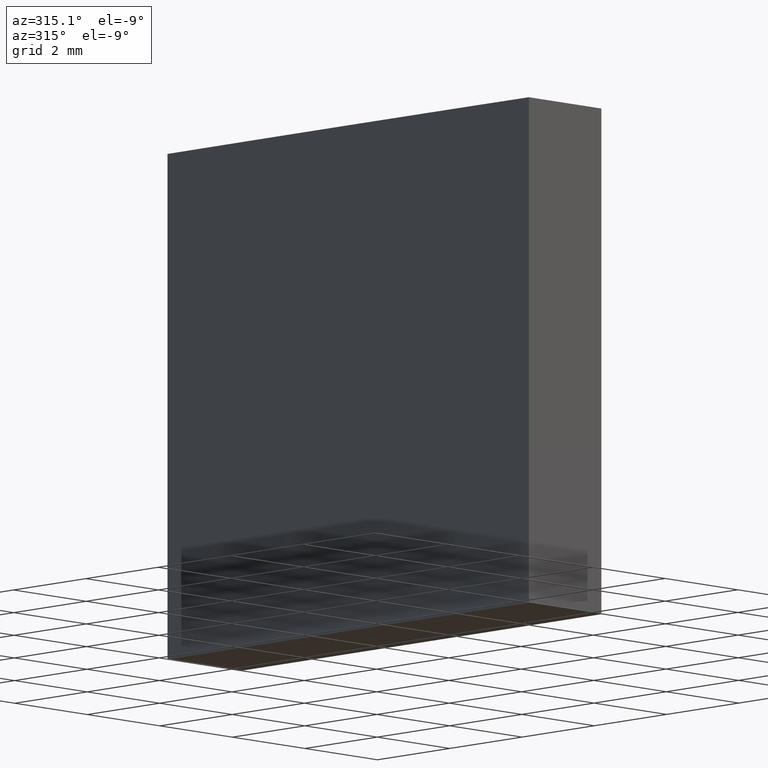
[diagram: clean part render]
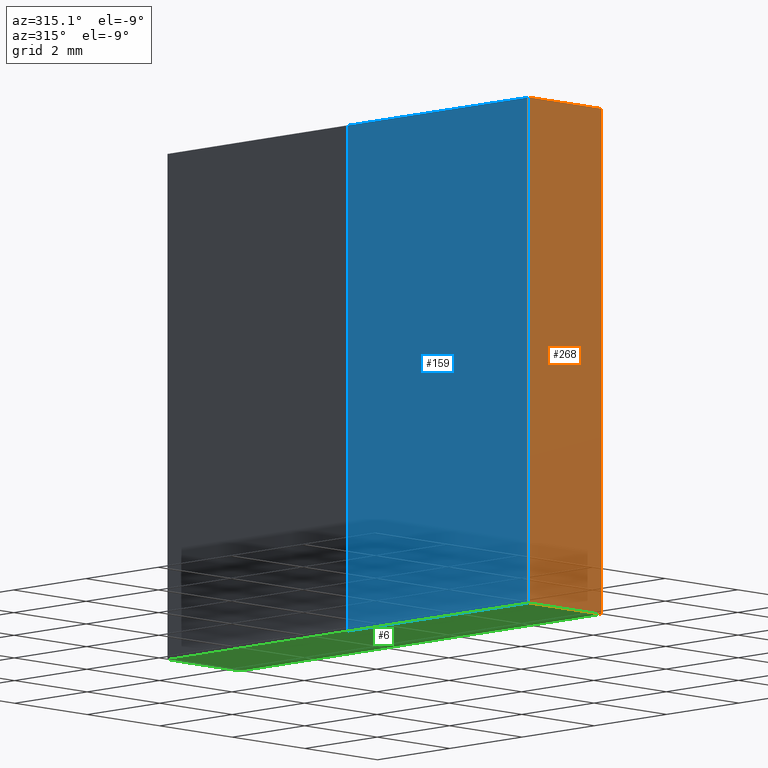
[diagram: same view with three faces highlighted in distinct colors, each labeled with its STEP entity id]
A machine part, auxiliary view with three faces highlighted in distinct colors.
Their STEP definitions:

[orange] entity #268 — the highlighted planar face has unit normal (-0, 1, 0).
#1 = EDGE_LOOP ( 'NONE', ( #62, #172, #50, #48 ) ) ;
#19 = PLANE ( 'NONE',  #195 ) ;
#35 = DIRECTION ( 'NONE',  ( 1.000000000000000000, 1.734723475976805517E-15, 0.000000000000000000 ) ) ;
#48 = ORIENTED_EDGE ( 'NONE', *, *, #86, .T. ) ;
#50 = ORIENTED_EDGE ( 'NONE', *, *, #211, .F. ) ;
#62 = ORIENTED_EDGE ( 'NONE', *, *, #136, .T. ) ;
#63 = VECTOR ( 'NONE', #84, 1000.000000000000000 ) ;
#68 = CARTESIAN_POINT ( 'NONE',  ( -516.7758121274639507, -5.000000000000004441, 0.000000000000000000 ) ) ;
#72 = DIRECTION ( 'NONE',  ( 1.000000000000000000, 1.734723475976805517E-15, 0.000000000000000000 ) ) ;
#82 = DIRECTION ( 'NONE',  ( -1.000000000000000000, -1.734723475976805517E-15, 0.000000000000000000 ) ) ;
#84 = DIRECTION ( 'NONE',  ( -0.000000000000000000, -0.000000000000000000, -1.000000000000000000 ) ) ;
#86 = EDGE_CURVE ( 'NONE', #164, #121, #240, .T. ) ;
#121 = VERTEX_POINT ( 'NONE', #68 ) ;
#127 = VECTOR ( 'NONE', #35, 1000.000000000000000 ) ;
#128 = CARTESIAN_POINT ( 'NONE',  ( -516.7758121274639507, -5.000000000000004441, 10.00000000000000000 ) ) ;
#129 = CARTESIAN_POINT ( 'NONE',  ( -514.7758121274639507, -5.000000000000000888, 10.00000000000000000 ) ) ;
#136 = EDGE_CURVE ( 'NONE', #121, #235, #263, .T. ) ;
#162 = VECTOR ( 'NONE', #72, 1000.000000000000000 ) ;
#164 = VERTEX_POINT ( 'NONE', #169 ) ;
#167 = FACE_OUTER_BOUND ( 'NONE', #1, .T. ) ;
#169 = CARTESIAN_POINT ( 'NONE',  ( -516.7758121274639507, -5.000000000000004441, 10.00000000000000000 ) ) ;
#172 = ORIENTED_EDGE ( 'NONE', *, *, #232, .F. ) ;
#173 = VECTOR ( 'NONE', #218, 1000.000000000000000 ) ;
#183 = LINE ( 'NONE', #272, #127 ) ;
#190 = VERTEX_POINT ( 'NONE', #229 ) ;
#195 = AXIS2_PLACEMENT_3D ( 'NONE', #128, #226, #82 ) ;
#202 = CARTESIAN_POINT ( 'NONE',  ( -516.7758121274639507, -5.000000000000004441, 10.00000000000000000 ) ) ;
#207 = CARTESIAN_POINT ( 'NONE',  ( -514.7758121274639507, -5.000000000000000888, 0.000000000000000000 ) ) ;
#211 = EDGE_CURVE ( 'NONE', #164, #190, #183, .T. ) ;
#218 = DIRECTION ( 'NONE',  ( -0.000000000000000000, -0.000000000000000000, -1.000000000000000000 ) ) ;
#225 = LINE ( 'NONE', #129, #63 ) ;
#226 = DIRECTION ( 'NONE',  ( -1.734723475976805517E-15, 1.000000000000000000, 0.000000000000000000 ) ) ;
#229 = CARTESIAN_POINT ( 'NONE',  ( -514.7758121274639507, -5.000000000000000888, 10.00000000000000000 ) ) ;
#232 = EDGE_CURVE ( 'NONE', #190, #235, #225, .T. ) ;
#235 = VERTEX_POINT ( 'NONE', #207 ) ;
#240 = LINE ( 'NONE', #202, #173 ) ;
#259 = CARTESIAN_POINT ( 'NONE',  ( -516.7758121274639507, -5.000000000000004441, 0.000000000000000000 ) ) ;
#263 = LINE ( 'NONE', #259, #162 ) ;
#268 = ADVANCED_FACE ( 'NONE', ( #167 ), #19, .F. ) ;
#272 = CARTESIAN_POINT ( 'NONE',  ( -516.7758121274639507, -5.000000000000004441, 10.00000000000000000 ) ) ;

[blue] entity #159 — the highlighted cylindrical surface (partial cylindrical patch) has radius 516.8 mm, axis along (-0, -0, -1).
#12 = AXIS2_PLACEMENT_3D ( 'NONE', #247, #83, #206 ) ;
#36 = EDGE_CURVE ( 'NONE', #66, #164, #144, .T. ) ;
#39 = DIRECTION ( 'NONE',  ( 0.000000000000000000, 0.000000000000000000, 1.000000000000000000 ) ) ;
#45 = VERTEX_POINT ( 'NONE', #242 ) ;
#58 = EDGE_CURVE ( 'NONE', #66, #45, #146, .T. ) ;
#59 = DIRECTION ( 'NONE',  ( 1.000000000000000000, 0.000000000000000000, 0.000000000000000000 ) ) ;
#61 = EDGE_LOOP ( 'NONE', ( #74, #157, #222, #241 ) ) ;
#66 = VERTEX_POINT ( 'NONE', #122 ) ;
#68 = CARTESIAN_POINT ( 'NONE',  ( -516.7758121274639507, -5.000000000000004441, 0.000000000000000000 ) ) ;
#74 = ORIENTED_EDGE ( 'NONE', *, *, #36, .F. ) ;
#76 = CIRCLE ( 'NONE', #192, 516.7999999999999545 ) ;
#83 = DIRECTION ( 'NONE',  ( -0.000000000000000000, -0.000000000000000000, -1.000000000000000000 ) ) ;
#86 = EDGE_CURVE ( 'NONE', #164, #121, #240, .T. ) ;
#96 = DIRECTION ( 'NONE',  ( 0.000000000000000000, 0.000000000000000000, 1.000000000000000000 ) ) ;
#100 = CARTESIAN_POINT ( 'NONE',  ( 0.000000000000000000, 0.000000000000000000, 10.00000000000000000 ) ) ;
#121 = VERTEX_POINT ( 'NONE', #68 ) ;
#122 = CARTESIAN_POINT ( 'NONE',  ( -516.7999999999999545, 0.000000000000000000, 10.00000000000000000 ) ) ;
#144 = CIRCLE ( 'NONE', #270, 516.7999999999999545 ) ;
#146 = LINE ( 'NONE', #199, #186 ) ;
#150 = CYLINDRICAL_SURFACE ( 'NONE', #12, 516.7999999999999545 ) ;
#157 = ORIENTED_EDGE ( 'NONE', *, *, #58, .T. ) ;
#159 = ADVANCED_FACE ( 'NONE', ( #267 ), #150, .T. ) ;
#164 = VERTEX_POINT ( 'NONE', #169 ) ;
#169 = CARTESIAN_POINT ( 'NONE',  ( -516.7758121274639507, -5.000000000000004441, 10.00000000000000000 ) ) ;
#173 = VECTOR ( 'NONE', #218, 1000.000000000000000 ) ;
#179 = DIRECTION ( 'NONE',  ( -0.000000000000000000, -0.000000000000000000, -1.000000000000000000 ) ) ;
#185 = CARTESIAN_POINT ( 'NONE',  ( 0.000000000000000000, 0.000000000000000000, 0.000000000000000000 ) ) ;
#186 = VECTOR ( 'NONE', #179, 1000.000000000000000 ) ;
#192 = AXIS2_PLACEMENT_3D ( 'NONE', #185, #39, #59 ) ;
#199 = CARTESIAN_POINT ( 'NONE',  ( -516.7999999999999545, 0.000000000000000000, 10.00000000000000000 ) ) ;
#202 = CARTESIAN_POINT ( 'NONE',  ( -516.7758121274639507, -5.000000000000004441, 10.00000000000000000 ) ) ;
#203 = DIRECTION ( 'NONE',  ( 1.000000000000000000, 0.000000000000000000, 0.000000000000000000 ) ) ;
#206 = DIRECTION ( 'NONE',  ( -1.000000000000000000, 0.000000000000000000, 0.000000000000000000 ) ) ;
#218 = DIRECTION ( 'NONE',  ( -0.000000000000000000, -0.000000000000000000, -1.000000000000000000 ) ) ;
#222 = ORIENTED_EDGE ( 'NONE', *, *, #227, .T. ) ;
#227 = EDGE_CURVE ( 'NONE', #45, #121, #76, .T. ) ;
#240 = LINE ( 'NONE', #202, #173 ) ;
#241 = ORIENTED_EDGE ( 'NONE', *, *, #86, .F. ) ;
#242 = CARTESIAN_POINT ( 'NONE',  ( -516.7999999999999545, 0.000000000000000000, 0.000000000000000000 ) ) ;
#247 = CARTESIAN_POINT ( 'NONE',  ( 0.000000000000000000, 0.000000000000000000, 10.00000000000000000 ) ) ;
#267 = FACE_OUTER_BOUND ( 'NONE', #61, .T. ) ;
#270 = AXIS2_PLACEMENT_3D ( 'NONE', #100, #96, #203 ) ;

[green] entity #6 — the highlighted planar face has unit normal (0, 0, 1).
#3 = ORIENTED_EDGE ( 'NONE', *, *, #152, .F. ) ;
#6 = ADVANCED_FACE ( 'NONE', ( #46 ), #75, .F. ) ;
#7 = LINE ( 'NONE', #98, #264 ) ;
#18 = CARTESIAN_POINT ( 'NONE',  ( -514.7758121274639507, 5.000000000000000888, 0.000000000000000000 ) ) ;
#27 = DIRECTION ( 'NONE',  ( 0.000000000000000000, 0.000000000000000000, 1.000000000000000000 ) ) ;
#38 = AXIS2_PLACEMENT_3D ( 'NONE', #237, #165, #224 ) ;
#39 = DIRECTION ( 'NONE',  ( 0.000000000000000000, 0.000000000000000000, 1.000000000000000000 ) ) ;
#45 = VERTEX_POINT ( 'NONE', #242 ) ;
#46 = FACE_OUTER_BOUND ( 'NONE', #88, .T. ) ;
#52 = DIRECTION ( 'NONE',  ( -1.000000000000000000, 1.734723475976805517E-15, -0.000000000000000000 ) ) ;
#54 = EDGE_CURVE ( 'NONE', #115, #137, #7, .T. ) ;
#59 = DIRECTION ( 'NONE',  ( 1.000000000000000000, 0.000000000000000000, 0.000000000000000000 ) ) ;
#68 = CARTESIAN_POINT ( 'NONE',  ( -516.7758121274639507, -5.000000000000004441, 0.000000000000000000 ) ) ;
#72 = DIRECTION ( 'NONE',  ( 1.000000000000000000, 1.734723475976805517E-15, 0.000000000000000000 ) ) ;
#73 = ORIENTED_EDGE ( 'NONE', *, *, #54, .F. ) ;
#75 = PLANE ( 'NONE',  #168 ) ;
#76 = CIRCLE ( 'NONE', #192, 516.7999999999999545 ) ;
#88 = EDGE_LOOP ( 'NONE', ( #3, #73, #110, #143, #274 ) ) ;
#97 = CIRCLE ( 'NONE', #38, 516.7999999999999545 ) ;
#98 = CARTESIAN_POINT ( 'NONE',  ( -516.7758121274639507, 5.000000000000004441, 0.000000000000000000 ) ) ;
#110 = ORIENTED_EDGE ( 'NONE', *, *, #155, .F. ) ;
#115 = VERTEX_POINT ( 'NONE', #120 ) ;
#117 = CARTESIAN_POINT ( 'NONE',  ( 0.000000000000000000, 0.000000000000000000, 0.000000000000000000 ) ) ;
#120 = CARTESIAN_POINT ( 'NONE',  ( -514.7758121274639507, 5.000000000000000888, 0.000000000000000000 ) ) ;
#121 = VERTEX_POINT ( 'NONE', #68 ) ;
#131 = VECTOR ( 'NONE', #147, 1000.000000000000000 ) ;
#136 = EDGE_CURVE ( 'NONE', #121, #235, #263, .T. ) ;
#137 = VERTEX_POINT ( 'NONE', #261 ) ;
#143 = ORIENTED_EDGE ( 'NONE', *, *, #136, .F. ) ;
#147 = DIRECTION ( 'NONE',  ( -0.000000000000000000, 1.000000000000000000, -0.000000000000000000 ) ) ;
#152 = EDGE_CURVE ( 'NONE', #137, #45, #97, .T. ) ;
#155 = EDGE_CURVE ( 'NONE', #235, #115, #243, .T. ) ;
#162 = VECTOR ( 'NONE', #72, 1000.000000000000000 ) ;
#165 = DIRECTION ( 'NONE',  ( 0.000000000000000000, 0.000000000000000000, 1.000000000000000000 ) ) ;
#168 = AXIS2_PLACEMENT_3D ( 'NONE', #117, #27, #201 ) ;
#185 = CARTESIAN_POINT ( 'NONE',  ( 0.000000000000000000, 0.000000000000000000, 0.000000000000000000 ) ) ;
#192 = AXIS2_PLACEMENT_3D ( 'NONE', #185, #39, #59 ) ;
#201 = DIRECTION ( 'NONE',  ( 1.000000000000000000, 0.000000000000000000, -0.000000000000000000 ) ) ;
#207 = CARTESIAN_POINT ( 'NONE',  ( -514.7758121274639507, -5.000000000000000888, 0.000000000000000000 ) ) ;
#224 = DIRECTION ( 'NONE',  ( 1.000000000000000000, 0.000000000000000000, 0.000000000000000000 ) ) ;
#227 = EDGE_CURVE ( 'NONE', #45, #121, #76, .T. ) ;
#235 = VERTEX_POINT ( 'NONE', #207 ) ;
#237 = CARTESIAN_POINT ( 'NONE',  ( 0.000000000000000000, 0.000000000000000000, 0.000000000000000000 ) ) ;
#242 = CARTESIAN_POINT ( 'NONE',  ( -516.7999999999999545, 0.000000000000000000, 0.000000000000000000 ) ) ;
#243 = LINE ( 'NONE', #18, #131 ) ;
#259 = CARTESIAN_POINT ( 'NONE',  ( -516.7758121274639507, -5.000000000000004441, 0.000000000000000000 ) ) ;
#261 = CARTESIAN_POINT ( 'NONE',  ( -516.7758121274639507, 5.000000000000004441, 0.000000000000000000 ) ) ;
#263 = LINE ( 'NONE', #259, #162 ) ;
#264 = VECTOR ( 'NONE', #52, 1000.000000000000000 ) ;
#274 = ORIENTED_EDGE ( 'NONE', *, *, #227, .F. ) ;